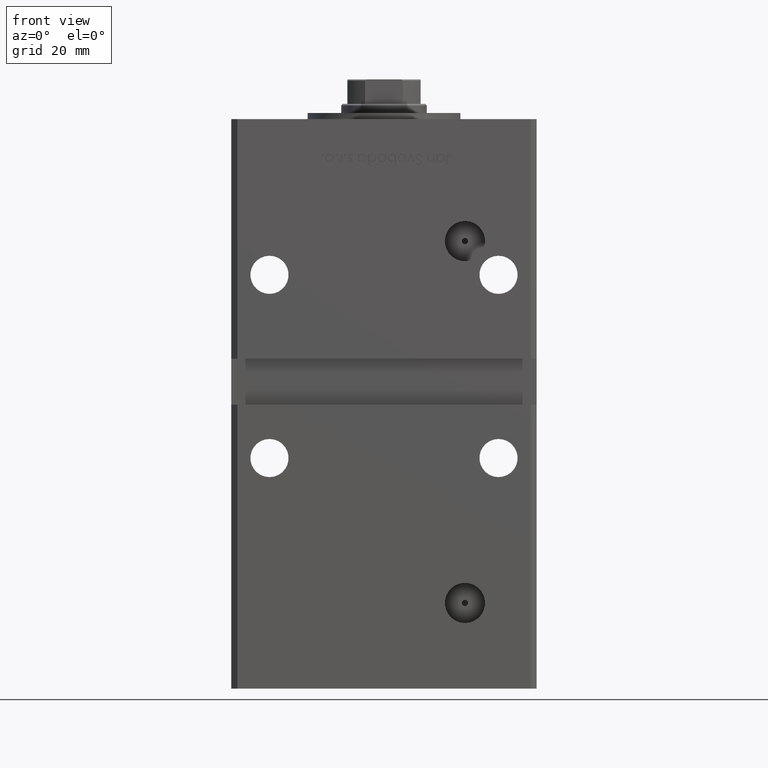
[diagram: clean part render]
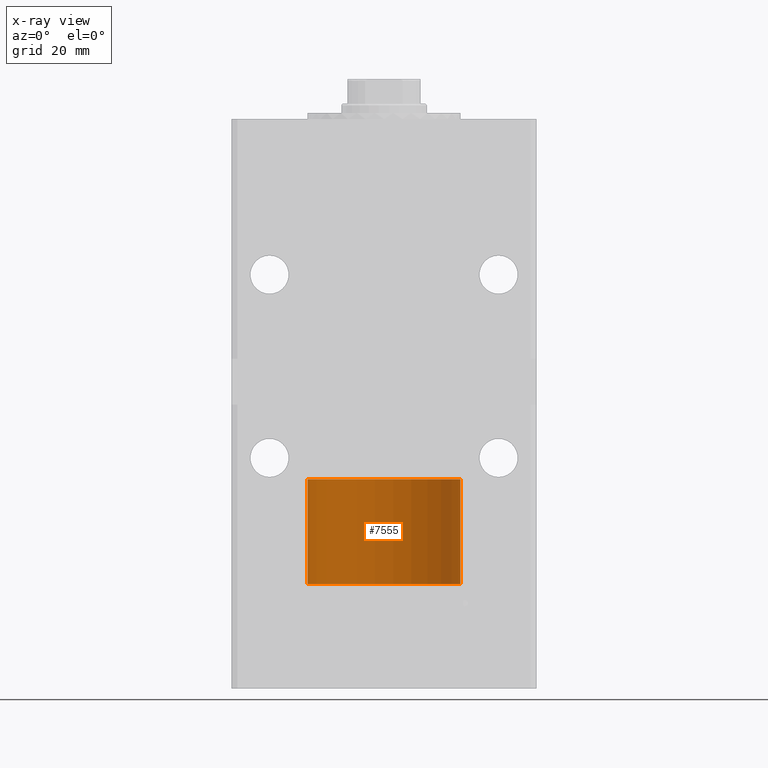
[diagram: x-ray — body ghosted, one internal face saturated and labeled with its STEP entity id]
A machine part, front view, then the same camera in x-ray: the body is ghosted and one INTERNAL B-rep face — a face not visible from any outside direction — is saturated and labeled: STEP entity #7555.
In plain terms, the highlighted cylindrical surface (partial cylindrical patch) has radius 25 mm, axis along (-0, -0, -1).
Its self-contained STEP definition (entity closure, byte-faithful):
#411 = CARTESIAN_POINT ( 'NONE',  ( -25.00000000000000000, 0.000000000000000000, 34.25000000000000000 ) ) ;
#5762 = DIRECTION ( 'NONE',  ( 0.000000000000000000, 0.000000000000000000, 1.000000000000000000 ) ) ;
#7555 = ADVANCED_FACE ( 'NONE', ( #41250 ), #15730, .T. ) ;
#8431 = AXIS2_PLACEMENT_3D ( 'NONE', #30264, #5762, #9295 ) ;
#9295 = DIRECTION ( 'NONE',  ( 1.000000000000000000, 0.000000000000000000, 0.000000000000000000 ) ) ;
#9630 = VECTOR ( 'NONE', #52789, 1000.000000000000000 ) ;
#11915 = EDGE_CURVE ( 'NONE', #28989, #33499, #43617, .T. ) ;
#14478 = EDGE_CURVE ( 'NONE', #44384, #27797, #17974, .T. ) ;
#15730 = CYLINDRICAL_SURFACE ( 'NONE', #42676, 25.00000000000000000 ) ;
#17305 = VECTOR ( 'NONE', #19618, 1000.000000000000000 ) ;
#17893 = CARTESIAN_POINT ( 'NONE',  ( -25.00000000000000000, 0.000000000000000000, 0.000000000000000000 ) ) ;
#17974 = CIRCLE ( 'NONE', #36820, 25.00000000000000000 ) ;
#18569 = CARTESIAN_POINT ( 'NONE',  ( 0.000000000000000000, 0.000000000000000000, 34.25000000000000000 ) ) ;
#19091 = ORIENTED_EDGE ( 'NONE', *, *, #14478, .F. ) ;
#19618 = DIRECTION ( 'NONE',  ( -0.000000000000000000, -0.000000000000000000, -1.000000000000000000 ) ) ;
#22797 = EDGE_LOOP ( 'NONE', ( #19091, #23945, #50607, #42384 ) ) ;
#23945 = ORIENTED_EDGE ( 'NONE', *, *, #46337, .T. ) ;
#24047 = DIRECTION ( 'NONE',  ( -0.000000000000000000, -0.000000000000000000, -1.000000000000000000 ) ) ;
#26116 = DIRECTION ( 'NONE',  ( 0.000000000000000000, 0.000000000000000000, 1.000000000000000000 ) ) ;
#27797 = VERTEX_POINT ( 'NONE', #411 ) ;
#28989 = VERTEX_POINT ( 'NONE', #39879 ) ;
#30264 = CARTESIAN_POINT ( 'NONE',  ( 0.000000000000000000, 0.000000000000000000, 0.000000000000000000 ) ) ;
#31464 = LINE ( 'NONE', #52129, #17305 ) ;
#31851 = CARTESIAN_POINT ( 'NONE',  ( 0.000000000000000000, 0.000000000000000000, 34.25000000000000000 ) ) ;
#32127 = LINE ( 'NONE', #44736, #9630 ) ;
#33499 = VERTEX_POINT ( 'NONE', #17893 ) ;
#34951 = DIRECTION ( 'NONE',  ( 1.000000000000000000, 0.000000000000000000, 0.000000000000000000 ) ) ;
#36820 = AXIS2_PLACEMENT_3D ( 'NONE', #18569, #26116, #34951 ) ;
#39879 = CARTESIAN_POINT ( 'NONE',  ( 25.00000000000000000, 3.061616997868383043E-15, 0.000000000000000000 ) ) ;
#41250 = FACE_OUTER_BOUND ( 'NONE', #22797, .T. ) ;
#42384 = ORIENTED_EDGE ( 'NONE', *, *, #43447, .F. ) ;
#42472 = CARTESIAN_POINT ( 'NONE',  ( 25.00000000000000000, 3.061616997868383043E-15, 34.25000000000000000 ) ) ;
#42676 = AXIS2_PLACEMENT_3D ( 'NONE', #31851, #24047, #53046 ) ;
#43447 = EDGE_CURVE ( 'NONE', #27797, #33499, #31464, .T. ) ;
#43617 = CIRCLE ( 'NONE', #8431, 25.00000000000000000 ) ;
#44384 = VERTEX_POINT ( 'NONE', #42472 ) ;
#44736 = CARTESIAN_POINT ( 'NONE',  ( 25.00000000000000000, 3.061616997868383043E-15, 34.25000000000000000 ) ) ;
#46337 = EDGE_CURVE ( 'NONE', #44384, #28989, #32127, .T. ) ;
#50607 = ORIENTED_EDGE ( 'NONE', *, *, #11915, .T. ) ;
#52129 = CARTESIAN_POINT ( 'NONE',  ( -25.00000000000000000, 0.000000000000000000, 34.25000000000000000 ) ) ;
#52789 = DIRECTION ( 'NONE',  ( -0.000000000000000000, -0.000000000000000000, -1.000000000000000000 ) ) ;
#53046 = DIRECTION ( 'NONE',  ( -1.000000000000000000, 0.000000000000000000, 0.000000000000000000 ) ) ;